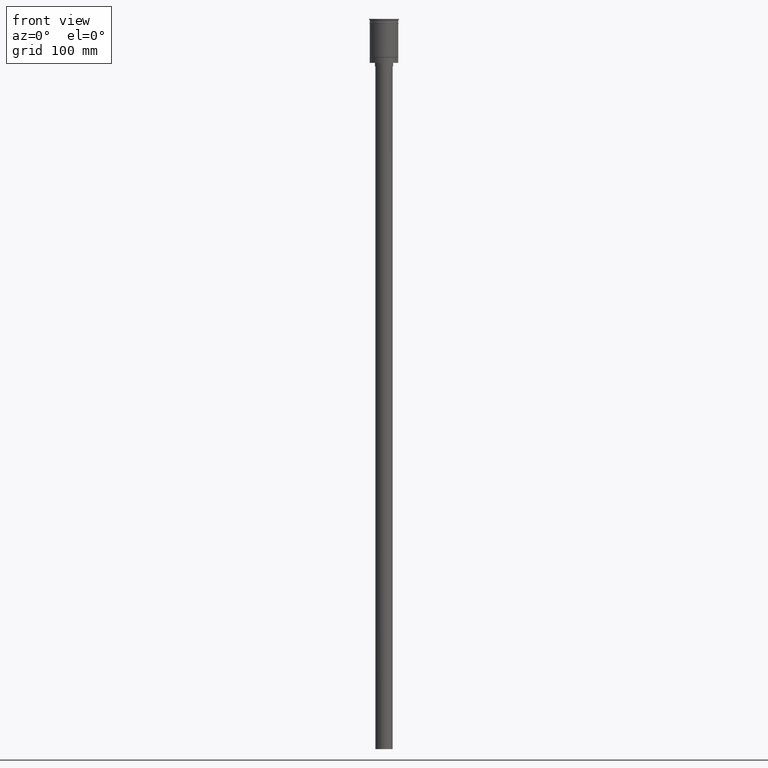
[diagram: clean part render]
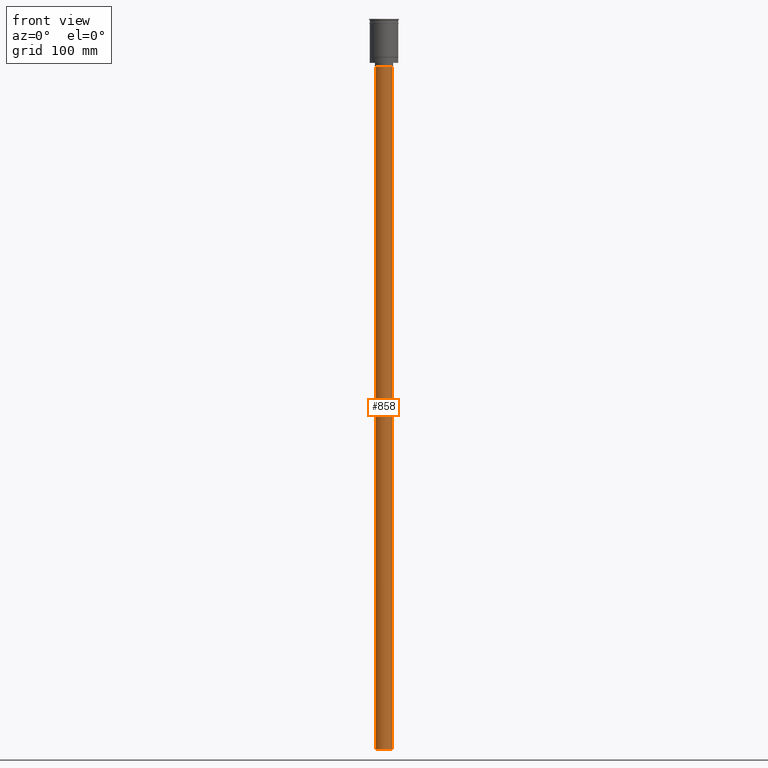
[diagram: same view with one face highlighted and labeled with its STEP entity id]
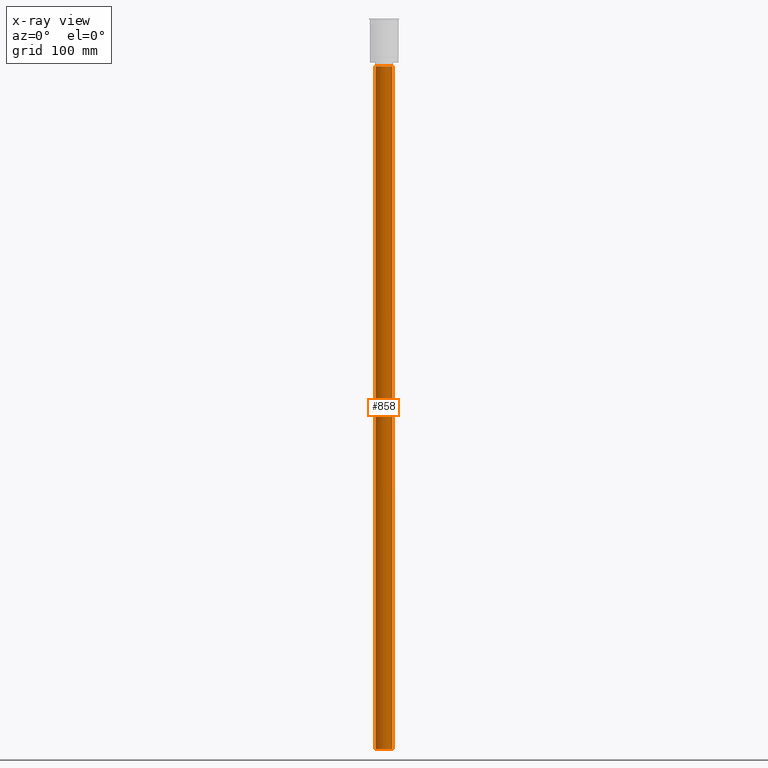
[diagram: x-ray of the same camera — body ghosted, the highlighted face saturated]
A machine part, front view. The second image highlights one B-rep face of the part: STEP entity #858.
The next image is the same camera in x-ray: the body ghosted, the highlighted face saturated — about 0% of this face is hidden behind the body in this view.
In plain terms, the highlighted cylindrical surface (edge-blend (fillet) strip) has radius 7.5 mm, axis along (-0, -0, 1).
Its self-contained STEP definition (entity closure, byte-faithful):
#18 = EDGE_LOOP ( 'NONE', ( #34, #835, #137, #1083 ) ) ;
#34 = ORIENTED_EDGE ( 'NONE', *, *, #1387, .F. ) ;
#40 = CARTESIAN_POINT ( 'NONE',  ( -7.500000000000000000, 9.184850993605147944E-16, -41.50000000000000000 ) ) ;
#50 = DIRECTION ( 'NONE',  ( -0.000000000000000000, -0.000000000000000000, 1.000000000000000000 ) ) ;
#137 = ORIENTED_EDGE ( 'NONE', *, *, #1496, .T. ) ;
#141 = VERTEX_POINT ( 'NONE', #600 ) ;
#153 = VECTOR ( 'NONE', #1203, 1000.000000000000000 ) ;
#205 = CARTESIAN_POINT ( 'NONE',  ( 0.000000000000000000, 0.000000000000000000, -638.5000000000000000 ) ) ;
#338 = CARTESIAN_POINT ( 'NONE',  ( 7.500000000000000000, 0.000000000000000000, -41.50000000000000000 ) ) ;
#434 = CYLINDRICAL_SURFACE ( 'NONE', #1354, 7.500000000000000000 ) ;
#497 = DIRECTION ( 'NONE',  ( 0.000000000000000000, 0.000000000000000000, -1.000000000000000000 ) ) ;
#510 = VECTOR ( 'NONE', #50, 1000.000000000000000 ) ;
#600 = CARTESIAN_POINT ( 'NONE',  ( 7.500000000000000000, 0.000000000000000000, -638.5000000000000000 ) ) ;
#768 = AXIS2_PLACEMENT_3D ( 'NONE', #852, #497, #1000 ) ;
#775 = CARTESIAN_POINT ( 'NONE',  ( -7.500000000000000000, 9.184850993605147944E-16, -638.5000000000000000 ) ) ;
#813 = CARTESIAN_POINT ( 'NONE',  ( 7.500000000000000000, 0.000000000000000000, -638.5000000000000000 ) ) ;
#835 = ORIENTED_EDGE ( 'NONE', *, *, #1127, .F. ) ;
#836 = FACE_OUTER_BOUND ( 'NONE', #18, .T. ) ;
#852 = CARTESIAN_POINT ( 'NONE',  ( 0.000000000000000000, 0.000000000000000000, -638.5000000000000000 ) ) ;
#858 = ADVANCED_FACE ( 'NONE', ( #836 ), #434, .T. ) ;
#859 = AXIS2_PLACEMENT_3D ( 'NONE', #1196, #1444, #956 ) ;
#926 = LINE ( 'NONE', #775, #510 ) ;
#956 = DIRECTION ( 'NONE',  ( -1.000000000000000000, 0.000000000000000000, 0.000000000000000000 ) ) ;
#989 = CIRCLE ( 'NONE', #859, 7.500000000000000000 ) ;
#1000 = DIRECTION ( 'NONE',  ( -1.000000000000000000, 0.000000000000000000, 0.000000000000000000 ) ) ;
#1083 = ORIENTED_EDGE ( 'NONE', *, *, #1582, .T. ) ;
#1119 = CIRCLE ( 'NONE', #768, 7.500000000000000000 ) ;
#1127 = EDGE_CURVE ( 'NONE', #141, #1383, #1119, .T. ) ;
#1165 = CARTESIAN_POINT ( 'NONE',  ( -7.500000000000000000, 9.184850993605147944E-16, -638.5000000000000000 ) ) ;
#1196 = CARTESIAN_POINT ( 'NONE',  ( 0.000000000000000000, 0.000000000000000000, -41.50000000000000000 ) ) ;
#1203 = DIRECTION ( 'NONE',  ( -0.000000000000000000, -0.000000000000000000, 1.000000000000000000 ) ) ;
#1213 = DIRECTION ( 'NONE',  ( -0.000000000000000000, -0.000000000000000000, 1.000000000000000000 ) ) ;
#1354 = AXIS2_PLACEMENT_3D ( 'NONE', #205, #1213, #1462 ) ;
#1383 = VERTEX_POINT ( 'NONE', #1165 ) ;
#1387 = EDGE_CURVE ( 'NONE', #1383, #1466, #926, .T. ) ;
#1444 = DIRECTION ( 'NONE',  ( 0.000000000000000000, 0.000000000000000000, -1.000000000000000000 ) ) ;
#1462 = DIRECTION ( 'NONE',  ( 1.000000000000000000, 0.000000000000000000, 0.000000000000000000 ) ) ;
#1466 = VERTEX_POINT ( 'NONE', #40 ) ;
#1496 = EDGE_CURVE ( 'NONE', #141, #1522, #1541, .T. ) ;
#1522 = VERTEX_POINT ( 'NONE', #338 ) ;
#1541 = LINE ( 'NONE', #813, #153 ) ;
#1582 = EDGE_CURVE ( 'NONE', #1522, #1466, #989, .T. ) ;